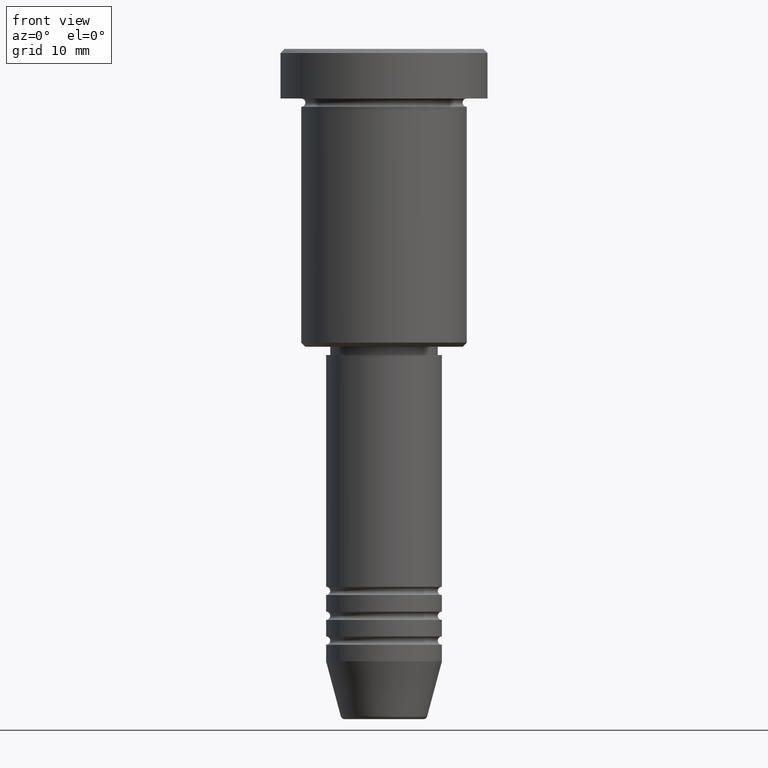
[diagram: clean part render]
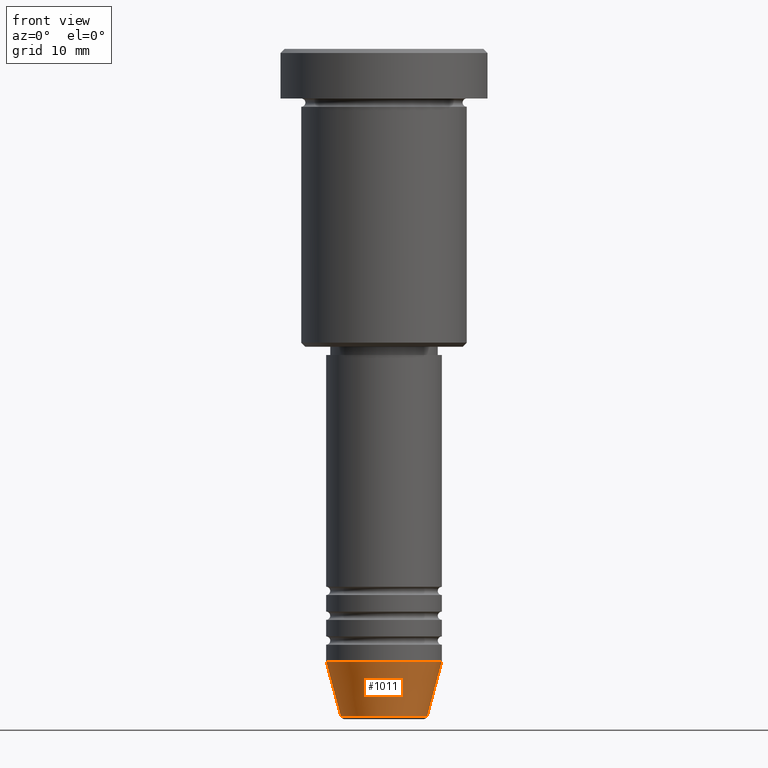
[diagram: same view with one face highlighted and labeled with its STEP entity id]
A machine part, front view. The second image highlights one B-rep face of the part: STEP entity #1011.
In plain terms, the highlighted conical surface has half-angle 15 deg.
Its self-contained STEP definition (entity closure, byte-faithful):
#54 = CARTESIAN_POINT ( 'NONE',  ( -7.000000000000000000, 8.572527594031473190E-16, -74.00000000000000000 ) ) ;
#55 = VERTEX_POINT ( 'NONE', #875 ) ;
#117 = CARTESIAN_POINT ( 'NONE',  ( 0.000000000000000000, 0.000000000000000000, -74.00000000000000000 ) ) ;
#128 = CARTESIAN_POINT ( 'NONE',  ( 0.000000000000000000, 0.000000000000000000, -74.00000000000000000 ) ) ;
#182 = VECTOR ( 'NONE', #952, 1000.000000000000000 ) ;
#184 = VECTOR ( 'NONE', #476, 1000.000000000000000 ) ;
#222 = DIRECTION ( 'NONE',  ( -0.000000000000000000, -0.000000000000000000, 1.000000000000000000 ) ) ;
#271 = EDGE_LOOP ( 'NONE', ( #460, #557, #1082, #852 ) ) ;
#272 = DIRECTION ( 'NONE',  ( 1.000000000000000000, 0.000000000000000000, 0.000000000000000000 ) ) ;
#308 = LINE ( 'NONE', #571, #182 ) ;
#389 = VERTEX_POINT ( 'NONE', #54 ) ;
#427 = CARTESIAN_POINT ( 'NONE',  ( 0.000000000000000000, 0.000000000000000000, -80.62940952255124216 ) ) ;
#453 = VERTEX_POINT ( 'NONE', #749 ) ;
#457 = EDGE_CURVE ( 'NONE', #453, #389, #1106, .T. ) ;
#460 = ORIENTED_EDGE ( 'NONE', *, *, #457, .F. ) ;
#470 = EDGE_CURVE ( 'NONE', #55, #782, #308, .T. ) ;
#476 = DIRECTION ( 'NONE',  ( -0.2588190451025213501, 3.169619151431772337E-17, 0.9659258262890680902 ) ) ;
#479 = DIRECTION ( 'NONE',  ( -0.000000000000000000, -0.000000000000000000, 1.000000000000000000 ) ) ;
#504 = FACE_OUTER_BOUND ( 'NONE', #271, .T. ) ;
#557 = ORIENTED_EDGE ( 'NONE', *, *, #972, .T. ) ;
#564 = CONICAL_SURFACE ( 'NONE', #867, 7.000000000000000000, 0.2617993877991500740 ) ;
#571 = CARTESIAN_POINT ( 'NONE',  ( 7.000000000000000000, 0.000000000000000000, -74.00000000000000000 ) ) ;
#582 = AXIS2_PLACEMENT_3D ( 'NONE', #117, #479, #272 ) ;
#662 = CARTESIAN_POINT ( 'NONE',  ( -7.000000000000000000, 8.572527594031473190E-16, -74.00000000000000000 ) ) ;
#690 = DIRECTION ( 'NONE',  ( -0.000000000000000000, -0.000000000000000000, 1.000000000000000000 ) ) ;
#749 = CARTESIAN_POINT ( 'NONE',  ( -5.223655072137193045, 7.484830028987060174E-16, -80.62940952255124216 ) ) ;
#782 = VERTEX_POINT ( 'NONE', #890 ) ;
#852 = ORIENTED_EDGE ( 'NONE', *, *, #1099, .F. ) ;
#867 = AXIS2_PLACEMENT_3D ( 'NONE', #128, #222, #1061 ) ;
#875 = CARTESIAN_POINT ( 'NONE',  ( 5.223655072137193045, 0.000000000000000000, -80.62940952255124216 ) ) ;
#890 = CARTESIAN_POINT ( 'NONE',  ( 7.000000000000000000, 0.000000000000000000, -74.00000000000000000 ) ) ;
#952 = DIRECTION ( 'NONE',  ( 0.2588190451025213501, 0.000000000000000000, 0.9659258262890680902 ) ) ;
#972 = EDGE_CURVE ( 'NONE', #453, #55, #1092, .T. ) ;
#1011 = ADVANCED_FACE ( 'NONE', ( #504 ), #564, .T. ) ;
#1031 = AXIS2_PLACEMENT_3D ( 'NONE', #427, #690, #1047 ) ;
#1047 = DIRECTION ( 'NONE',  ( 1.000000000000000000, 0.000000000000000000, 0.000000000000000000 ) ) ;
#1061 = DIRECTION ( 'NONE',  ( 1.000000000000000000, 0.000000000000000000, 0.000000000000000000 ) ) ;
#1082 = ORIENTED_EDGE ( 'NONE', *, *, #470, .T. ) ;
#1092 = CIRCLE ( 'NONE', #1031, 5.223655072137193045 ) ;
#1099 = EDGE_CURVE ( 'NONE', #389, #782, #1127, .T. ) ;
#1106 = LINE ( 'NONE', #662, #184 ) ;
#1127 = CIRCLE ( 'NONE', #582, 7.000000000000000000 ) ;